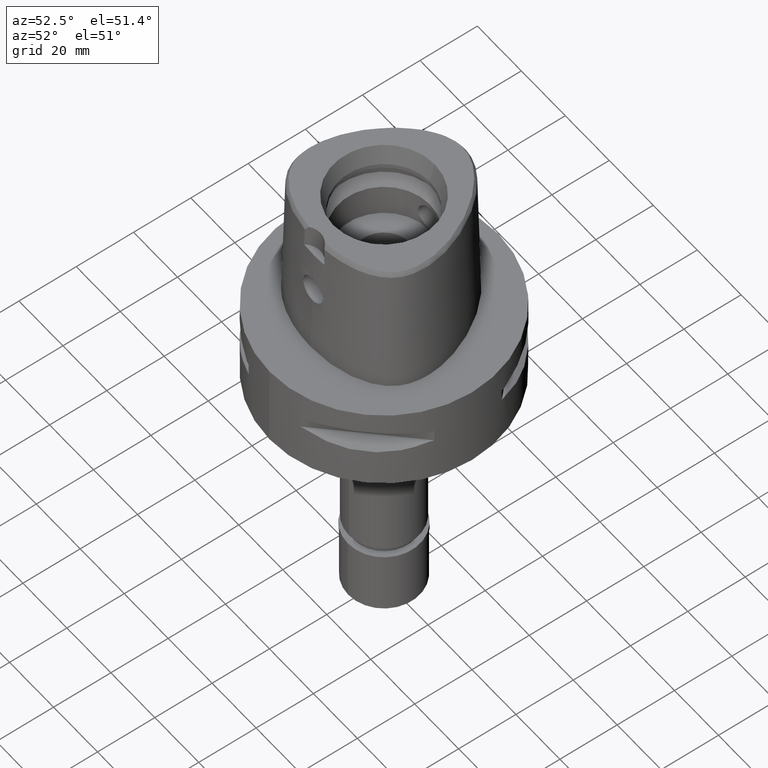
[diagram: clean part render]
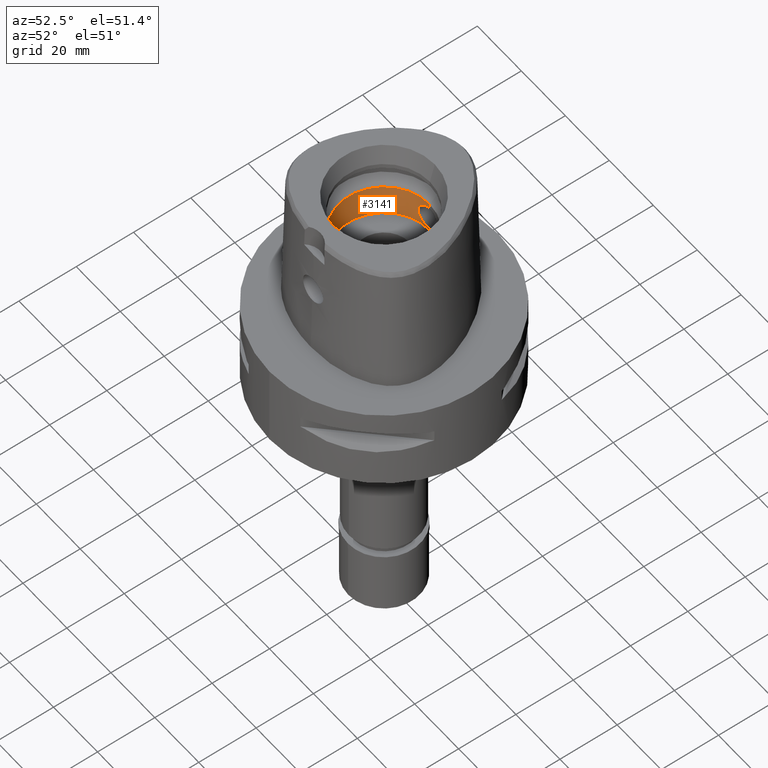
[diagram: same view with one face highlighted and labeled with its STEP entity id]
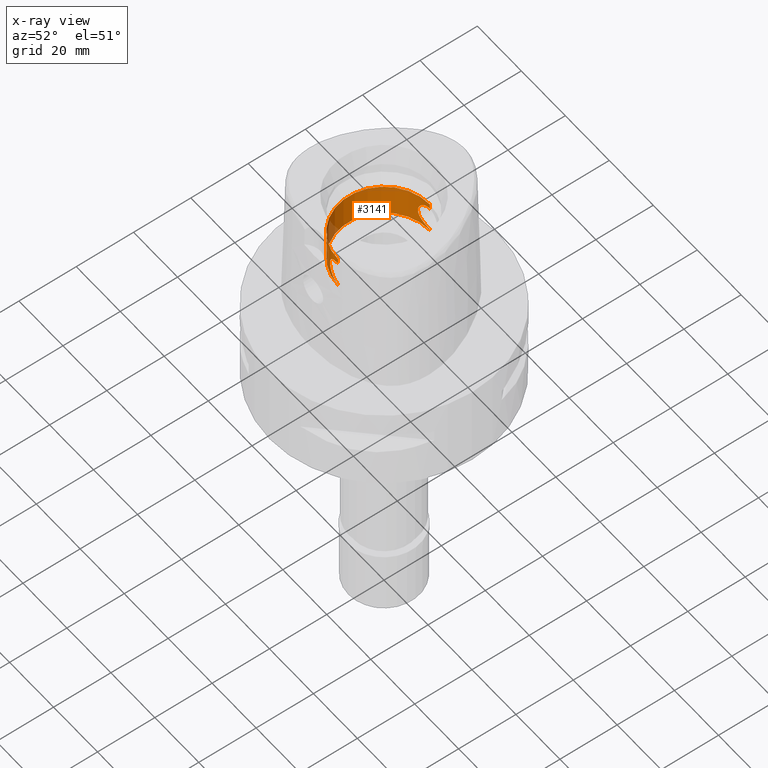
[diagram: x-ray of the same camera — body ghosted, the highlighted face saturated]
A machine part, auxiliary view. The second image highlights one B-rep face of the part: STEP entity #3141.
The next image is the same camera in x-ray: the body ghosted, the highlighted face saturated — about 7% of this face is hidden behind the body in this view.
In plain terms, the highlighted cylindrical surface (partial cylindrical patch) has radius 16 mm, axis along (0, 0, -1).
Its self-contained STEP definition (entity closure, byte-faithful):
#17 = CARTESIAN_POINT ( 'NONE',  ( -3.079067380662787290, 15.70090383901679942, 28.35047343940291142 ) ) ;
#46 = CARTESIAN_POINT ( 'NONE',  ( -3.770759980247857079, -15.54928484612777240, 22.45365534023646958 ) ) ;
#70 = CARTESIAN_POINT ( 'NONE',  ( -3.751176239658187583, 15.55403480366257440, 27.57515572555782768 ) ) ;
#95 = CARTESIAN_POINT ( 'NONE',  ( -3.702050631813982307, -15.56588145238441179, 22.35458630997092655 ) ) ;
#96 = CARTESIAN_POINT ( 'NONE',  ( -3.027770850642460765, 15.71074619974455544, 28.39663927633062457 ) ) ;
#129 = CARTESIAN_POINT ( 'NONE',  ( -4.189656940208129399, 15.44187122868366657, 26.77464054244640579 ) ) ;
#149 = CARTESIAN_POINT ( 'NONE',  ( -3.808565089496177336, 15.54008891750367027, 22.51055076183861559 ) ) ;
#174 = CARTESIAN_POINT ( 'NONE',  ( -3.772324227319705958, -15.54890525390606015, 22.45597329437722678 ) ) ;
#175 = CARTESIAN_POINT ( 'NONE',  ( -2.729594615933962576, 15.76540532702100705, 21.35913730680258382 ) ) ;
#199 = CARTESIAN_POINT ( 'NONE',  ( -4.155129910867763954, -15.45121309824026490, 23.14539743470667332 ) ) ;
#200 = CARTESIAN_POINT ( 'NONE',  ( -4.442109092198020193, 15.37148696654308822, 24.00412671213637594 ) ) ;
#225 = CARTESIAN_POINT ( 'NONE',  ( -4.516446335687758662, -15.34971054047343131, 24.42978865871282323 ) ) ;
#226 = CARTESIAN_POINT ( 'NONE',  ( -3.999411189207473072, 15.49220518450356820, 22.82912099227587177 ) ) ;
#229 = EDGE_CURVE ( 'NONE', #1523, #2794, #3603, .T. ) ;
#251 = CARTESIAN_POINT ( 'NONE',  ( -4.161424560260429395, -15.44954562373212781, 26.84476683909789685 ) ) ;
#252 = CARTESIAN_POINT ( 'NONE',  ( -2.264376687355035944, 15.83946225968417920, 21.05058049220882310 ) ) ;
#268 = AXIS2_PLACEMENT_3D ( 'NONE', #813, #1598, #3164 ) ;
#273 = CIRCLE ( 'NONE', #3314, 16.00000000000000000 ) ;
#284 = CARTESIAN_POINT ( 'NONE',  ( -4.219630551732197254, -15.43366195176635713, 26.70214927482145839 ) ) ;
#287 = LINE ( 'NONE', #1855, #3556 ) ;
#357 = CYLINDRICAL_SURFACE ( 'NONE', #268, 16.00000000000000000 ) ;
#367 = CARTESIAN_POINT ( 'NONE',  ( 0.0000000000000000000, -16.00000000000000000, 29.55000000000000071 ) ) ;
#419 = CARTESIAN_POINT ( 'NONE',  ( -3.772436195961556660, 15.54887830827934181, 27.54386160211427992 ) ) ;
#440 = CARTESIAN_POINT ( 'NONE',  ( -1.465313310938467728, -15.93288054623355521, 20.69122707576773124 ) ) ;
#457 = CARTESIAN_POINT ( 'NONE',  ( 0.0000000000000000000, 16.00000000000000000, 29.55000000000000071 ) ) ;
#465 = CARTESIAN_POINT ( 'NONE',  ( 0.0000000000000000000, -16.00000000000000000, 20.44999999999999929 ) ) ;
#473 = VERTEX_POINT ( 'NONE', #5004 ) ;
#481 = LINE ( 'NONE', #457, #1105 ) ;
#492 = CARTESIAN_POINT ( 'NONE',  ( -1.590909606422051592, 15.92067517995416104, 29.26310650829697835 ) ) ;
#543 = CARTESIAN_POINT ( 'NONE',  ( -1.698281069880156924, -15.90953571157762170, 20.77881952702375656 ) ) ;
#544 = CARTESIAN_POINT ( 'NONE',  ( -1.770123691009649392, 15.90163684328704541, 20.80843252579381897 ) ) ;
#552 = EDGE_CURVE ( 'NONE', #910, #2669, #4163, .T. ) ;
#565 = CARTESIAN_POINT ( 'NONE',  ( -3.484919793550367739, -15.61614698947798807, 27.92670124711028734 ) ) ;
#566 = CARTESIAN_POINT ( 'NONE',  ( -4.161427588471145356, 15.44954525539627710, 23.15523942802261104 ) ) ;
#576 = EDGE_CURVE ( 'NONE', #473, #2669, #3761, .T. ) ;
#584 = ORIENTED_EDGE ( 'NONE', *, *, #229, .F. ) ;
#590 = CARTESIAN_POINT ( 'NONE',  ( -2.554843346241270741, -15.79471292832124796, 28.76501703597668325 ) ) ;
#591 = CARTESIAN_POINT ( 'NONE',  ( -3.873229736101929888, 15.52414134861769313, 22.61183001807234660 ) ) ;
#620 = CARTESIAN_POINT ( 'NONE',  ( -4.226851849638247671, -15.43168791976835230, 26.68413704552114751 ) ) ;
#621 = CARTESIAN_POINT ( 'NONE',  ( -2.064185338870719644, 15.86630648015830936, 20.94446761269487212 ) ) ;
#642 = CARTESIAN_POINT ( 'NONE',  ( -2.652230358253440112, -15.77860401610010932, 28.69718691729551452 ) ) ;
#666 = CARTESIAN_POINT ( 'NONE',  ( -2.546597221807020084, -15.79604512245346903, 28.77059059623901405 ) ) ;
#734 = EDGE_LOOP ( 'NONE', ( #584, #5045, #2922, #1372, #3744, #2704, #2698, #4058 ) ) ;
#774 = DIRECTION ( 'NONE',  ( 0.0000000000000000000, 0.0000000000000000000, 1.000000000000000000 ) ) ;
#813 = CARTESIAN_POINT ( 'NONE',  ( 0.0000000000000000000, 0.0000000000000000000, 50.39999999999999858 ) ) ;
#824 = CARTESIAN_POINT ( 'NONE',  ( -4.199165905794377096, 15.43928770095531178, 26.75202829721409259 ) ) ;
#851 = CARTESIAN_POINT ( 'NONE',  ( -0.9962093680902831538, -15.96920684558384984, 20.55797680759618373 ) ) ;
#852 = CARTESIAN_POINT ( 'NONE',  ( -4.495808787952165098, 15.35589048042781890, 25.71584356322282616 ) ) ;
#878 = CARTESIAN_POINT ( 'NONE',  ( -2.857373536157507665, -15.74233262071704509, 21.45808145753471052 ) ) ;
#879 = CARTESIAN_POINT ( 'NONE',  ( 0.0000000000000000000, 16.00000000000000000, 29.55000000000000071 ) ) ;
#902 = CARTESIAN_POINT ( 'NONE',  ( -4.179513726172752186, 15.44462292696823269, 26.79852470944313581 ) ) ;
#910 = VERTEX_POINT ( 'NONE', #1679 ) ;
#928 = CARTESIAN_POINT ( 'NONE',  ( -3.303417263783335667, 15.65543377176718742, 21.86954111154406633 ) ) ;
#958 = CARTESIAN_POINT ( 'NONE',  ( -4.411053383438083841, -15.38060143693581594, 23.84499821228884997 ) ) ;
#980 = CARTESIAN_POINT ( 'NONE',  ( -1.899645079703601969, -15.88671989459093581, 29.13462918303235227 ) ) ;
#1007 = CARTESIAN_POINT ( 'NONE',  ( -4.442101176630036008, -15.37148904683571082, 25.99590811228755527 ) ) ;
#1008 = CARTESIAN_POINT ( 'NONE',  ( -4.102398033238916497, 15.46541780468326266, 23.02646193778318917 ) ) ;
#1036 = CARTESIAN_POINT ( 'NONE',  ( -4.053977838849259108, -15.47807783950142380, 22.93275730557662229 ) ) ;
#1059 = CARTESIAN_POINT ( 'NONE',  ( -2.574441772251758742, -15.79152790814783458, 28.75167653806473567 ) ) ;
#1104 = B_SPLINE_CURVE_WITH_KNOTS ( 'NONE', 3,
 ( #465, #1727, #3611, #851, #4793, #2858, #440, #1272, #3681, #2834, #543, #4430, #2085, #4769, #4865, #2425, #4409, #878, #2448, #2011, #2477, #2057, #3661, #4841, #1321, #2110, #3298, #1348, #3635, #95, #1682, #2904, #3254, #3587, #46, #174, #3759, #1456, #1399, #1036, #4110, #4998, #199, #2216, #1777, #2548, #3730, #4138, #958, #2956, #225, #1827, #3347, #4917, #4530, #1007, #3781, #2134, #3704, #1751, #2575, #620, #284, #2193, #251, #3015, #4942, #1853, #1802, #3322, #4089, #2527, #3037, #2604, #2241, #3403, #1428, #4971, #565, #4897, #3373, #2984, #1378, #2163, #4557, #642, #4189, #1059, #590, #666, #4167, #4581, #2625, #2932, #4505, #3811, #980, #3433, #1481, #3867, #3123, #5108, #3892, #1119, #367 ),
 .UNSPECIFIED., .F., .F.,
 ( 4, 2, 2, 1, 1, 1, 1, 2, 2, 2, 2, 2, 1, 1, 2, 2, 2, 2, 1, 1, 1, 1, 2, 2, 2, 2, 1, 1, 2, 2, 2, 2, 2, 2, 2, 1, 1, 1, 2, 2, 2, 2, 1, 1, 1, 2, 2, 2, 2, 2, 2, 2, 1, 1, 1, 2, 2, 2, 2, 1, 1, 2, 2, 4 ),
 ( 0.0000000000000000000, 0.06250000000002652045, 0.09375000000003971823, 0.1093750000000462685, 0.1171875000000493910, 0.1210937500000508343, 0.1230468750000515282, 0.1240234375000519723, 0.1250000000000524025, 0.1875000000000700273, 0.2187500000000788813, 0.2343750000000832667, 0.2421875000000854872, 0.2460937500000864309, 0.2480468750000868750, 0.2500000000000873190, 0.2812500000000932032, 0.2968750000000964229, 0.3046875000000984213, 0.3085937500000989764, 0.3105468750000987543, 0.3115234375000985878, 0.3120117187500989764, 0.3125000000000993650, 0.3437500000000869305, 0.3593750000000809908, 0.3671875000000777711, 0.3710937500000761613, 0.3730468750000753286, 0.3750000000000744405, 0.4375000000000624500, 0.4687500000000564548, 0.5000000000000504041, 0.5625000000000393019, 0.5937500000000336398, 0.6093750000000311973, 0.6171875000000296430, 0.6210937500000285327, 0.6230468750000283107, 0.6250000000000281997, 0.6562500000000330846, 0.6718750000000355271, 0.6796875000000370814, 0.6835937500000378586, 0.6855468750000385247, 0.6865234375000388578, 0.6875000000000391909, 0.7187500000000330846, 0.7343750000000300870, 0.7500000000000268674, 0.7812500000000207612, 0.7968750000000177636, 0.8046875000000164313, 0.8085937500000155431, 0.8105468750000148770, 0.8115234375000148770, 0.8125000000000147660, 0.8437500000000153211, 0.8593750000000157652, 0.8671875000000158762, 0.8710937500000158762, 0.8730468750000157652, 0.8750000000000155431, 1.000000000000000000 ),
 .UNSPECIFIED. ) ;
#1105 = VECTOR ( 'NONE', #3267, 1000.000000000000000 ) ;
#1119 = CARTESIAN_POINT ( 'NONE',  ( -0.5625373479073696448, -16.00000000000000000, 29.54999999999999361 ) ) ;
#1204 = CARTESIAN_POINT ( 'NONE',  ( -2.857343863915064119, 15.74233786930796875, 28.54194248883869989 ) ) ;
#1227 = CARTESIAN_POINT ( 'NONE',  ( -4.196352190463255916, 15.44005272207899893, 26.75875030209602201 ) ) ;
#1247 = CARTESIAN_POINT ( 'NONE',  ( -3.468482967250269056, 15.62005502598315942, 27.94868988707264634 ) ) ;
#1264 = DIRECTION ( 'NONE',  ( 0.0000000000000000000, -1.000000000000000000, 0.0000000000000000000 ) ) ;
#1272 = CARTESIAN_POINT ( 'NONE',  ( -1.590945010360116596, -15.92067154165060394, 20.73690668788354685 ) ) ;
#1305 = VERTEX_POINT ( 'NONE', #3275 ) ;
#1321 = CARTESIAN_POINT ( 'NONE',  ( -3.189318713554617268, -15.67891343095203638, 21.75486172333090451 ) ) ;
#1322 = CARTESIAN_POINT ( 'NONE',  ( -3.484925694549966924, 15.61614551242483984, 22.07330582761800031 ) ) ;
#1348 = CARTESIAN_POINT ( 'NONE',  ( -3.608924392932031378, -15.58793867766735275, 22.22802856675687977 ) ) ;
#1349 = CARTESIAN_POINT ( 'NONE',  ( -3.903691630146975733, 15.51651370494703031, 22.66222352453099376 ) ) ;
#1372 = ORIENTED_EDGE ( 'NONE', *, *, #552, .F. ) ;
#1378 = CARTESIAN_POINT ( 'NONE',  ( -2.962123273982140592, -15.72368784968828770, 28.45704749771648423 ) ) ;
#1379 = CARTESIAN_POINT ( 'NONE',  ( 0.0000000000000000000, 16.00000000000000000, 20.00000000000000000 ) ) ;
#1399 = CARTESIAN_POINT ( 'NONE',  ( -3.947477866758910103, -15.50564519408957764, 22.73221844227458632 ) ) ;
#1400 = CARTESIAN_POINT ( 'NONE',  ( -1.754072789399700127, 15.90341470188477402, 20.80169028991615932 ) ) ;
#1428 = CARTESIAN_POINT ( 'NONE',  ( -3.674612787865827901, -15.57277381837817032, 27.68738267111038098 ) ) ;
#1429 = CARTESIAN_POINT ( 'NONE',  ( -2.962140787422690824, 15.72368462031088399, 21.54296756997928597 ) ) ;
#1456 = CARTESIAN_POINT ( 'NONE',  ( -3.866436344057503138, -15.52606591073767106, 22.59570682625311022 ) ) ;
#1481 = CARTESIAN_POINT ( 'NONE',  ( -1.794218988240620982, -15.89894933062925908, 29.18136505999109431 ) ) ;
#1523 = VERTEX_POINT ( 'NONE', #4387 ) ;
#1578 = VECTOR ( 'NONE', #3374, 1000.000000000000000 ) ;
#1598 = DIRECTION ( 'NONE',  ( 0.0000000000000000000, 0.0000000000000000000, -1.000000000000000000 ) ) ;
#1613 = CARTESIAN_POINT ( 'NONE',  ( -1.684846511908498545, 15.91096630911555110, 29.22657713225770948 ) ) ;
#1636 = CARTESIAN_POINT ( 'NONE',  ( -2.655275166708880530, 15.77765331378871672, 28.69879656004965440 ) ) ;
#1659 = CARTESIAN_POINT ( 'NONE',  ( -1.707171946568374787, 15.90858513618628400, 29.21759257412913868 ) ) ;
#1679 = CARTESIAN_POINT ( 'NONE',  ( 0.0000000000000000000, 16.00000000000000000, 29.55000000000000071 ) ) ;
#1682 = CARTESIAN_POINT ( 'NONE',  ( -3.726282369309116049, -15.56005823339070204, 22.38877939537340822 ) ) ;
#1683 = CARTESIAN_POINT ( 'NONE',  ( -0.9961878768771389447, 15.96920825787455023, 29.44202789831593847 ) ) ;
#1710 = CARTESIAN_POINT ( 'NONE',  ( -4.132994643244532362, 15.45714541230709571, 26.90319602464457205 ) ) ;
#1727 = CARTESIAN_POINT ( 'NONE',  ( -0.2782055714221700060, -15.99999999999999645, 20.45000000000000284 ) ) ;
#1728 = CARTESIAN_POINT ( 'NONE',  ( -2.615073108240201893, 15.78484823325644548, 21.27638156580659157 ) ) ;
#1730 = VECTOR ( 'NONE', #774, 1000.000000000000000 ) ;
#1751 = CARTESIAN_POINT ( 'NONE',  ( -4.261970450576532343, -15.42206061786014715, 26.59396347177733233 ) ) ;
#1752 = CARTESIAN_POINT ( 'NONE',  ( -2.554863205078647059, 15.79470972343062130, 21.23499643944213844 ) ) ;
#1777 = CARTESIAN_POINT ( 'NONE',  ( -4.189652323891028374, -15.44187290045170791, 23.22534855781601593 ) ) ;
#1779 = CARTESIAN_POINT ( 'NONE',  ( -3.799104005360694369, 15.54240417563912935, 22.49613942991346605 ) ) ;
#1802 = CARTESIAN_POINT ( 'NONE',  ( -3.903695300097065335, -15.51651288046159038, 27.33777033989573013 ) ) ;
#1803 = CARTESIAN_POINT ( 'NONE',  ( -4.219636267341808633, 15.43366082681107621, 23.29786489254982129 ) ) ;
#1827 = CARTESIAN_POINT ( 'NONE',  ( -4.543547069557843265, -15.34147168805904116, 24.71785021071737631 ) ) ;
#1828 = CARTESIAN_POINT ( 'NONE',  ( -4.524616866566812945, 15.34742484315163402, 24.43721284604779242 ) ) ;
#1853 = CARTESIAN_POINT ( 'NONE',  ( -3.962678364186410729, -15.50163000503252952, 27.23734414303949691 ) ) ;
#1855 = CARTESIAN_POINT ( 'NONE',  ( 0.0000000000000000000, -16.00000000000000000, 29.55000000000000071 ) ) ;
#1869 = EDGE_CURVE ( 'NONE', #3687, #1305, #287, .T. ) ;
#1987 = CARTESIAN_POINT ( 'NONE',  ( -3.866446053865151278, 15.52606363698486547, 27.40427778759385902 ) ) ;
#2011 = CARTESIAN_POINT ( 'NONE',  ( -3.027798496762783564, -15.71074096793951114, 21.60338537067459086 ) ) ;
#2012 = CARTESIAN_POINT ( 'NONE',  ( -2.143366757437013881, 15.85669290493108008, 29.02458111161339716 ) ) ;
#2036 = CARTESIAN_POINT ( 'NONE',  ( -1.140760103993205377, 15.95958583846035239, 29.40724264926300435 ) ) ;
#2048 = CARTESIAN_POINT ( 'NONE',  ( 0.0000000000000000000, -16.00000000000000000, 29.55000000000000071 ) ) ;
#2057 = CARTESIAN_POINT ( 'NONE',  ( -3.138953278066980879, -15.68906115651885003, 21.70599708910913606 ) ) ;
#2059 = CARTESIAN_POINT ( 'NONE',  ( -3.947487563896062923, 15.50564270218542084, 27.26776463166709163 ) ) ;
#2085 = CARTESIAN_POINT ( 'NONE',  ( -1.713071927413301054, -15.90795088191267581, 20.78480184165006150 ) ) ;
#2086 = CARTESIAN_POINT ( 'NONE',  ( -3.608925282302509974, 15.58793875489599934, 27.77197038996003542 ) ) ;
#2110 = CARTESIAN_POINT ( 'NONE',  ( -3.349840948361816562, -15.64616776985414148, 21.91354633895037551 ) ) ;
#2111 = CARTESIAN_POINT ( 'NONE',  ( -3.674613688661279021, 15.57277332895812272, 22.31261877386840808 ) ) ;
#2125 = CARTESIAN_POINT ( 'NONE',  ( 0.0000000000000000000, 0.0000000000000000000, 20.00000000000000000 ) ) ;
#2134 = CARTESIAN_POINT ( 'NONE',  ( -4.343074729120707467, -15.39956319108151916, 26.35864634396184059 ) ) ;
#2135 = CARTESIAN_POINT ( 'NONE',  ( -3.536513010712533323, 15.60452899826052331, 22.13623471127148434 ) ) ;
#2163 = CARTESIAN_POINT ( 'NONE',  ( -2.785130416877287907, -15.75567861087420773, 28.59878611255497916 ) ) ;
#2164 = CARTESIAN_POINT ( 'NONE',  ( -2.541153697273674350, 15.79692280174022834, 21.22573864951214162 ) ) ;
#2193 = CARTESIAN_POINT ( 'NONE',  ( -4.215493976535723775, -15.43479160256108607, 26.71236132617347536 ) ) ;
#2194 = CARTESIAN_POINT ( 'NONE',  ( -1.747105877979794109, 15.90418178585306030, 20.79878388586040572 ) ) ;
#2216 = CARTESIAN_POINT ( 'NONE',  ( -4.179508729497911190, -15.44462469562572338, 23.20146367009745703 ) ) ;
#2217 = CARTESIAN_POINT ( 'NONE',  ( -2.399895137346605090, 15.81960703099427867, 21.13092108888233511 ) ) ;
#2241 = CARTESIAN_POINT ( 'NONE',  ( -3.799108428661934322, -15.54240332098869537, 27.50385385879609501 ) ) ;
#2367 = CARTESIAN_POINT ( 'NONE',  ( 0.0000000000000000000, 16.00000000000000000, 31.50000000000000000 ) ) ;
#2374 = CARTESIAN_POINT ( 'NONE',  ( -2.925363802413545766, 15.73002552135701748, 28.48611035590906582 ) ) ;
#2397 = CARTESIAN_POINT ( 'NONE',  ( -4.323958105636553029, 15.40531264654294041, 26.45109749241865771 ) ) ;
#2415 = CARTESIAN_POINT ( 'NONE',  ( 0.0000000000000000000, 16.00000000000000000, 20.44999999999999929 ) ) ;
#2425 = CARTESIAN_POINT ( 'NONE',  ( -2.523300014680701420, -15.79902962756622742, 21.21085096063524844 ) ) ;
#2426 = CARTESIAN_POINT ( 'NONE',  ( -4.516441512071670772, 15.34971197744748928, 25.57024841028623641 ) ) ;
#2440 = DIRECTION ( 'NONE',  ( 0.0000000000000000000, 0.0000000000000000000, -1.000000000000000000 ) ) ;
#2448 = CARTESIAN_POINT ( 'NONE',  ( -2.925392688737479041, -15.73002027454133156, 21.51391389589028691 ) ) ;
#2449 = CARTESIAN_POINT ( 'NONE',  ( -3.189292576270065016, 15.67891872885192761, 28.24516396761776704 ) ) ;
#2477 = CARTESIAN_POINT ( 'NONE',  ( -3.079094391384670448, -15.70089861780404128, 21.64955138946805846 ) ) ;
#2503 = CARTESIAN_POINT ( 'NONE',  ( -2.652250871545867472, 15.77860059733965059, 21.30282779764083756 ) ) ;
#2527 = CARTESIAN_POINT ( 'NONE',  ( -3.816848088710129705, -15.53805899386197353, 27.47676173747089834 ) ) ;
#2528 = CARTESIAN_POINT ( 'NONE',  ( -4.308081053701197760, 15.40933751179871791, 23.53260340130821859 ) ) ;
#2548 = CARTESIAN_POINT ( 'NONE',  ( -4.196347830802966250, -15.44005432721269244, 23.24123929448986914 ) ) ;
#2549 = CARTESIAN_POINT ( 'NONE',  ( -3.803024487767081130, 15.54144551466437463, 22.50209481850186322 ) ) ;
#2575 = CARTESIAN_POINT ( 'NONE',  ( -4.237588040299701042, -15.42875037416635386, 26.65710732719835718 ) ) ;
#2576 = CARTESIAN_POINT ( 'NONE',  ( -2.574461866630644913, 15.79152464315161986, 21.24833724970529403 ) ) ;
#2604 = CARTESIAN_POINT ( 'NONE',  ( -3.803028819094930402, -15.54144467798811924, 27.49789858710717994 ) ) ;
#2605 = CARTESIAN_POINT ( 'NONE',  ( -4.261977057047800166, 15.42205922307470267, 23.40605414359049163 ) ) ;
#2625 = CARTESIAN_POINT ( 'NONE',  ( -2.399876071687986112, -15.81960993100436497, 28.86909068673987377 ) ) ;
#2669 = VERTEX_POINT ( 'NONE', #2415 ) ;
#2698 = ORIENTED_EDGE ( 'NONE', *, *, #1869, .F. ) ;
#2704 = ORIENTED_EDGE ( 'NONE', *, *, #4098, .T. ) ;
#2764 = CARTESIAN_POINT ( 'NONE',  ( -3.164567237336389116, 15.68391714219621136, 28.26927458741651122 ) ) ;
#2794 = VERTEX_POINT ( 'NONE', #2798 ) ;
#2798 = CARTESIAN_POINT ( 'NONE',  ( 0.0000000000000000000, -16.00000000000000000, 20.44999999999999929 ) ) ;
#2808 = CARTESIAN_POINT ( 'NONE',  ( -3.649469553235155317, 15.57840963761018216, 27.71798495591515987 ) ) ;
#2834 = CARTESIAN_POINT ( 'NONE',  ( -1.684884112685484991, -15.91096222550596195, 20.77343785575581236 ) ) ;
#2835 = CARTESIAN_POINT ( 'NONE',  ( -1.713033589464119988, 15.90795511220731129, 29.21521373882661621 ) ) ;
#2858 = CARTESIAN_POINT ( 'NONE',  ( -1.357211456932369664, -15.94226283546972667, 20.65648383293340729 ) ) ;
#2880 = CARTESIAN_POINT ( 'NONE',  ( -4.550014972005905989, 15.33941184350851117, 25.13790463108722761 ) ) ;
#2904 = CARTESIAN_POINT ( 'NONE',  ( -3.751168735432475643, -15.55403637236168635, 22.42483334723816313 ) ) ;
#2906 = CARTESIAN_POINT ( 'NONE',  ( -2.785150339257688401, 15.75567514882851583, 21.40122932039081149 ) ) ;
#2922 = ORIENTED_EDGE ( 'NONE', *, *, #576, .T. ) ;
#2932 = CARTESIAN_POINT ( 'NONE',  ( -2.264357884705888058, -15.83946496220292666, 28.94943027728263374 ) ) ;
#2933 = CARTESIAN_POINT ( 'NONE',  ( -2.539987065377296904, 15.79711102339729756, 21.22495141109085637 ) ) ;
#2956 = CARTESIAN_POINT ( 'NONE',  ( -4.495814062762359065, -15.35588899405685659, 24.28418844424154699 ) ) ;
#2957 = CARTESIAN_POINT ( 'NONE',  ( -4.543544055679970661, 15.34147267175649709, 25.28219602317085091 ) ) ;
#2984 = CARTESIAN_POINT ( 'NONE',  ( -3.094062483597774804, -15.69862711313532344, 28.34195050025302010 ) ) ;
#2985 = CARTESIAN_POINT ( 'NONE',  ( -3.816843789853405333, 15.53805983925459522, 22.52323163771983516 ) ) ;
#3015 = CARTESIAN_POINT ( 'NONE',  ( -4.102397402675392435, -15.46541766008241758, 26.97353909032441521 ) ) ;
#3037 = CARTESIAN_POINT ( 'NONE',  ( -3.808569409117196436, -15.54008807711253581, 27.48944262964128882 ) ) ;
#3076 = CARTESIAN_POINT ( 'NONE',  ( 0.0000000000000000000, 0.0000000000000000000, 31.50000000000000000 ) ) ;
#3123 = CARTESIAN_POINT ( 'NONE',  ( -1.754052669290921518, -15.90341690957294851, 29.19831811637298102 ) ) ;
#3128 = DIRECTION ( 'NONE',  ( 0.0000000000000000000, 0.0000000000000000000, 1.000000000000000000 ) ) ;
#3141 = ADVANCED_FACE ( 'NONE', ( #5079 ), #357, .F. ) ;
#3164 = DIRECTION ( 'NONE',  ( 0.0000000000000000000, -1.000000000000000000, 0.0000000000000000000 ) ) ;
#3183 = CARTESIAN_POINT ( 'NONE',  ( -3.181655711113680063, 15.68046743868570303, 28.25264647072010504 ) ) ;
#3204 = CARTESIAN_POINT ( 'NONE',  ( -3.138927033459067761, 15.68906635997180032, 28.29402792154699853 ) ) ;
#3228 = CARTESIAN_POINT ( 'NONE',  ( -3.768407434987185223, 15.54985593897530549, 27.54982731639834270 ) ) ;
#3254 = CARTESIAN_POINT ( 'NONE',  ( -3.762790664247959604, -15.55121841546309902, 22.44188264558991364 ) ) ;
#3267 = DIRECTION ( 'NONE',  ( 0.0000000000000000000, 0.0000000000000000000, 1.000000000000000000 ) ) ;
#3275 = CARTESIAN_POINT ( 'NONE',  ( 0.0000000000000000000, -16.00000000000000000, 31.50000000000000000 ) ) ;
#3278 = CARTESIAN_POINT ( 'NONE',  ( -2.523266824950815224, 15.79903481094641471, 28.78917115941111149 ) ) ;
#3298 = CARTESIAN_POINT ( 'NONE',  ( -3.468490070397645564, -15.62005320465524960, 22.05131889923377742 ) ) ;
#3299 = CARTESIAN_POINT ( 'NONE',  ( -1.159189432197057501, 15.96838986749791722, 20.55577659394891654 ) ) ;
#3314 = AXIS2_PLACEMENT_3D ( 'NONE', #2125, #2440, #1264 ) ;
#3322 = CARTESIAN_POINT ( 'NONE',  ( -3.873233737741787586, -15.52414049618650971, 27.38816348668874667 ) ) ;
#3323 = CARTESIAN_POINT ( 'NONE',  ( -1.850773136603759417, 15.89251031774791656, 20.84315916015391323 ) ) ;
#3347 = CARTESIAN_POINT ( 'NONE',  ( -4.550016605372627865, -15.33941127123988224, 24.86215099079625546 ) ) ;
#3348 = CARTESIAN_POINT ( 'NONE',  ( -4.226857725782997122, 15.43168674739930601, 23.31587770079802624 ) ) ;
#3373 = CARTESIAN_POINT ( 'NONE',  ( -3.303408539620267259, -15.65543566466233472, 28.13046817105701791 ) ) ;
#3374 = DIRECTION ( 'NONE',  ( 0.0000000000000000000, 0.0000000000000000000, 1.000000000000000000 ) ) ;
#3403 = CARTESIAN_POINT ( 'NONE',  ( -3.744577712557837668, -15.55572792693724971, 27.58647495007265604 ) ) ;
#3433 = CARTESIAN_POINT ( 'NONE',  ( -1.850753553191023970, -15.89251259052358556, 29.15684956055770982 ) ) ;
#3556 = VECTOR ( 'NONE', #5000, 1000.000000000000000 ) ;
#3561 = CARTESIAN_POINT ( 'NONE',  ( -1.912171411920562836, 15.88648310426963839, 29.13411677183932724 ) ) ;
#3579 = CARTESIAN_POINT ( 'NONE',  ( 0.0000000000000000000, -16.00000000000000000, 20.00000000000000000 ) ) ;
#3587 = CARTESIAN_POINT ( 'NONE',  ( -3.768399313982387255, -15.54985768041777128, 22.45016068176643742 ) ) ;
#3603 = LINE ( 'NONE', #3579, #1730 ) ;
#3604 = EDGE_CURVE ( 'NONE', #1523, #473, #273, .T. ) ;
#3611 = CARTESIAN_POINT ( 'NONE',  ( -0.5640752440413994151, -15.99230171139595313, 20.47558493208720876 ) ) ;
#3612 = CARTESIAN_POINT ( 'NONE',  ( -1.465280853777187309, 15.93288362458592644, 29.30878390010149204 ) ) ;
#3614 = EDGE_CURVE ( 'NONE', #910, #4525, #481, .T. ) ;
#3635 = CARTESIAN_POINT ( 'NONE',  ( -3.649466559997799564, -15.57841005547312641, 22.28201108996227120 ) ) ;
#3636 = CARTESIAN_POINT ( 'NONE',  ( -4.086977595750750147, 15.46939700107862414, 27.00107807170905971 ) ) ;
#3661 = CARTESIAN_POINT ( 'NONE',  ( -3.164593148527450772, -15.68391194751223772, 21.73075049433117556 ) ) ;
#3662 = CARTESIAN_POINT ( 'NONE',  ( -3.762798590163527468, 15.55121672924266996, 27.55810569687010059 ) ) ;
#3681 = CARTESIAN_POINT ( 'NONE',  ( -1.653600938238583895, -15.91425128924059784, 20.76104373297139105 ) ) ;
#3682 = CARTESIAN_POINT ( 'NONE',  ( -4.549969975828982882, 15.33940606239298887, 24.72271143177623642 ) ) ;
#3687 = VERTEX_POINT ( 'NONE', #2048 ) ;
#3704 = CARTESIAN_POINT ( 'NONE',  ( -4.308073645031747390, -15.40933917230817407, 26.46741814497415390 ) ) ;
#3705 = CARTESIAN_POINT ( 'NONE',  ( -3.369139138973671344, 15.64144112288047594, 21.94072764575870593 ) ) ;
#3730 = CARTESIAN_POINT ( 'NONE',  ( -4.199161613558267447, -15.43928928869321204, 23.24796141288932461 ) ) ;
#3744 = ORIENTED_EDGE ( 'NONE', *, *, #3614, .T. ) ;
#3759 = CARTESIAN_POINT ( 'NONE',  ( -3.772427912172982012, -15.54888009509339675, 22.45612611348318666 ) ) ;
#3761 = LINE ( 'NONE', #1379, #1578 ) ;
#3781 = CARTESIAN_POINT ( 'NONE',  ( -4.407197250798306598, -15.38151538190922807, 26.14104529064670857 ) ) ;
#3782 = CARTESIAN_POINT ( 'NONE',  ( -0.5625435954014351703, 16.00000000000000000, 20.44999999999999929 ) ) ;
#3811 = CARTESIAN_POINT ( 'NONE',  ( -1.997944188101353769, -15.87476718255523700, 29.08851545934848559 ) ) ;
#3867 = CARTESIAN_POINT ( 'NONE',  ( -1.770103668336874270, -15.90163906099973090, 29.19157592991615147 ) ) ;
#3892 = CARTESIAN_POINT ( 'NONE',  ( -1.159175767070490970, -15.96839060021183343, 29.44422579484439950 ) ) ;
#3949 = CARTESIAN_POINT ( 'NONE',  ( -3.770768181524768892, 15.54928308177700380, 27.54633251487235057 ) ) ;
#3970 = CARTESIAN_POINT ( 'NONE',  ( -0.2782001068910611719, 16.00000000000001066, 29.55000000000000426 ) ) ;
#3999 = CARTESIAN_POINT ( 'NONE',  ( -1.698243156451421987, 15.90953986061253644, 29.22119572610240468 ) ) ;
#4024 = CARTESIAN_POINT ( 'NONE',  ( -3.702056098178802213, 15.56588042129633820, 27.64540605693719755 ) ) ;
#4047 = CARTESIAN_POINT ( 'NONE',  ( -4.053986218455703394, 15.47807541231430939, 27.06722624874729632 ) ) ;
#4058 = ORIENTED_EDGE ( 'NONE', *, *, #4452, .F. ) ;
#4070 = CARTESIAN_POINT ( 'NONE',  ( -1.899664462564046419, 15.88671758217960139, 20.86537972280028441 ) ) ;
#4089 = CARTESIAN_POINT ( 'NONE',  ( -3.835940430625005781, -15.53336519271712390, 27.44719556074509725 ) ) ;
#4090 = CARTESIAN_POINT ( 'NONE',  ( -4.237594150193246811, 15.42874913209464438, 23.34290828511583982 ) ) ;
#4098 = EDGE_CURVE ( 'NONE', #4525, #1305, #4553, .T. ) ;
#4110 = CARTESIAN_POINT ( 'NONE',  ( -4.086969872069973420, -15.46939934136937467, 22.99890610495348753 ) ) ;
#4111 = CARTESIAN_POINT ( 'NONE',  ( -3.962675516144175791, 15.50163073709197370, 22.76265078186375135 ) ) ;
#4138 = CARTESIAN_POINT ( 'NONE',  ( -4.323960206990523858, -15.40531250836003707, 23.54890563554800309 ) ) ;
#4139 = CARTESIAN_POINT ( 'NONE',  ( -3.835936202304143450, 15.53336604578387714, 22.55279781099049075 ) ) ;
#4141 = AXIS2_PLACEMENT_3D ( 'NONE', #3076, #3128, #4330 ) ;
#4163 = B_SPLINE_CURVE_WITH_KNOTS ( 'NONE', 3,
 ( #879, #3970, #4410, #1683, #2036, #4354, #3612, #492, #4431, #1613, #3999, #1659, #2835, #3561, #2012, #3278, #1636, #1204, #2374, #96, #17, #3204, #2764, #3183, #2449, #4770, #1247, #2086, #2808, #4024, #4819, #70, #3662, #3228, #3949, #4331, #419, #1987, #2059, #4047, #3636, #1710, #4750, #902, #129, #1227, #824, #2397, #4384, #852, #2426, #2957, #2880, #3682, #1828, #200, #4457, #4842, #2528, #2605, #4090, #3348, #1803, #4531, #566, #1008, #226, #4111, #1349, #591, #4139, #2985, #149, #2549, #1779, #4918, #2111, #2135, #1322, #3705, #928, #4866, #1429, #2906, #175, #2503, #1728, #2576, #1752, #4558, #2164, #2933, #2217, #252, #621, #4943, #4070, #3323, #4899, #544, #1400, #2194, #3299, #3782, #4485 ),
 .UNSPECIFIED., .F., .F.,
 ( 4, 2, 2, 1, 1, 1, 1, 2, 2, 2, 2, 2, 1, 1, 2, 2, 2, 2, 1, 1, 1, 1, 2, 2, 2, 2, 1, 1, 2, 2, 2, 2, 2, 2, 2, 1, 1, 1, 2, 2, 2, 2, 1, 1, 1, 2, 2, 2, 2, 2, 2, 2, 1, 1, 1, 2, 2, 2, 2, 1, 1, 2, 2, 4 ),
 ( 0.0000000000000000000, 0.06249999999996705413, 0.09374999999995060895, 0.1093749999999422962, 0.1171874999999382438, 0.1210937499999362593, 0.1230468749999353989, 0.1240234374999348438, 0.1249999999999342748, 0.1874999999998833988, 0.2187499999998581690, 0.2343749999998457345, 0.2421874999998394618, 0.2460937499998365752, 0.2480468749998349098, 0.2499999999998332445, 0.2812499999998110956, 0.2968749999997997713, 0.3046874999997941091, 0.3085937499997913336, 0.3105468749997898903, 0.3115234374997891686, 0.3120117187497892242, 0.3124999999997893352, 0.3437499999997984945, 0.3593749999998027689, 0.3671874999998046007, 0.3710937499998054889, 0.3730468749998062661, 0.3749999999998069877, 0.4374999999998204214, 0.4687499999998268607, 0.4999999999998332445, 0.5624999999998460121, 0.5937499999998527844, 0.6093749999998557820, 0.6171874999998573363, 0.6210937499998576694, 0.6230468749998582245, 0.6249999999998586686, 0.6562499999998689937, 0.6718749999998741007, 0.6796874999998766542, 0.6835937499998778755, 0.6855468749998785416, 0.6865234374998790967, 0.6874999999998797628, 0.7187499999998928635, 0.7343749999998995248, 0.7499999999999060751, 0.7812499999999187317, 0.7968749999999250599, 0.8046874999999279465, 0.8085937499999295008, 0.8105468749999302780, 0.8115234374999307221, 0.8124999999999311662, 0.8437499999999450440, 0.8593749999999519273, 0.8671874999999553690, 0.8710937499999568123, 0.8730468749999575895, 0.8749999999999582556, 1.000000000000000000 ),
 .UNSPECIFIED. ) ;
#4167 = CARTESIAN_POINT ( 'NONE',  ( -2.541134032800150155, -15.79692595976082536, 28.77427459015718370 ) ) ;
#4189 = CARTESIAN_POINT ( 'NONE',  ( -2.615052671133250239, -15.78485159900799140, 28.72363278278391974 ) ) ;
#4330 = DIRECTION ( 'NONE',  ( 0.0000000000000000000, 1.000000000000000000, 0.0000000000000000000 ) ) ;
#4331 = CARTESIAN_POINT ( 'NONE',  ( -3.772332481373883883, 15.54890347445157950, 27.54401446636360262 ) ) ;
#4354 = CARTESIAN_POINT ( 'NONE',  ( -1.357181538775629193, 15.94226548351479167, 29.34352548247307269 ) ) ;
#4384 = CARTESIAN_POINT ( 'NONE',  ( -4.411048559110542833, 15.38060253977330483, 26.15501743212412578 ) ) ;
#4387 = CARTESIAN_POINT ( 'NONE',  ( 0.0000000000000000000, -16.00000000000000000, 20.00000000000000000 ) ) ;
#4409 = CARTESIAN_POINT ( 'NONE',  ( -2.655307059733455155, -15.77764808456774048, 21.30122637014640219 ) ) ;
#4410 = CARTESIAN_POINT ( 'NONE',  ( -0.5640635805869049779, 15.99230206446863889, 29.52441607490641928 ) ) ;
#4430 = CARTESIAN_POINT ( 'NONE',  ( -1.707210068307569939, -15.90858094336208062, 20.78242285661323052 ) ) ;
#4431 = CARTESIAN_POINT ( 'NONE',  ( -1.653564068228525974, 15.91425522200126252, 29.23897064560675929 ) ) ;
#4452 = EDGE_CURVE ( 'NONE', #2794, #3687, #1104, .T. ) ;
#4457 = CARTESIAN_POINT ( 'NONE',  ( -4.407205412713338433, 15.38151333304915624, 23.85898569809447167 ) ) ;
#4485 = CARTESIAN_POINT ( 'NONE',  ( 0.0000000000000000000, 16.00000000000000000, 20.44999999999999929 ) ) ;
#4505 = CARTESIAN_POINT ( 'NONE',  ( -2.064166413347512830, -15.86630894763755428, 29.05554201732576303 ) ) ;
#4525 = VERTEX_POINT ( 'NONE', #2367 ) ;
#4530 = CARTESIAN_POINT ( 'NONE',  ( -4.524610823692029271, -15.34742665473920020, 25.56283231986219207 ) ) ;
#4531 = CARTESIAN_POINT ( 'NONE',  ( -4.215499682017137317, 15.43479048220081751, 23.28765271728413566 ) ) ;
#4553 = CIRCLE ( 'NONE', #4141, 16.00000000000000000 ) ;
#4557 = CARTESIAN_POINT ( 'NONE',  ( -2.729574231541165297, -15.76540880732892091, 28.64087797284603099 ) ) ;
#4558 = CARTESIAN_POINT ( 'NONE',  ( -2.546616965873742089, 15.79604194540690898, 21.22942273861440654 ) ) ;
#4581 = CARTESIAN_POINT ( 'NONE',  ( -2.539967469038481696, -15.79711416914364186, 28.77506177389923181 ) ) ;
#4750 = CARTESIAN_POINT ( 'NONE',  ( -4.155135760224653474, 15.45121112494183535, 26.85458942879168021 ) ) ;
#4769 = CARTESIAN_POINT ( 'NONE',  ( -1.912209224132250585, -15.88647844644094498, 20.86590070628309590 ) ) ;
#4770 = CARTESIAN_POINT ( 'NONE',  ( -3.349826277480681291, 15.64617109901425174, 28.08647051457720067 ) ) ;
#4793 = CARTESIAN_POINT ( 'NONE',  ( -1.140784955987854010, -15.95958398482881080, 20.59276365351468741 ) ) ;
#4819 = CARTESIAN_POINT ( 'NONE',  ( -3.726288901112015939, 15.56005692804316354, 27.61121130299216375 ) ) ;
#4841 = CARTESIAN_POINT ( 'NONE',  ( -3.181681398924358639, -15.68046225010494688, 21.74737865687358607 ) ) ;
#4842 = CARTESIAN_POINT ( 'NONE',  ( -4.343082513322389815, 15.39956137087163768, 23.64137842677810042 ) ) ;
#4865 = CARTESIAN_POINT ( 'NONE',  ( -2.143403220011760091, -15.85668795785578844, 20.97543837631116048 ) ) ;
#4866 = CARTESIAN_POINT ( 'NONE',  ( -3.094077004170888046, 15.69862427604555144, 21.65806322977843479 ) ) ;
#4897 = CARTESIAN_POINT ( 'NONE',  ( -3.369130814278060271, -15.64144300377932950, 28.05928156821142849 ) ) ;
#4899 = CARTESIAN_POINT ( 'NONE',  ( -1.794238869419840565, 15.89894709740169176, 20.81864347152965777 ) ) ;
#4917 = CARTESIAN_POINT ( 'NONE',  ( -4.549966690610683706, -15.33940721084024084, 25.27733904945685239 ) ) ;
#4918 = CARTESIAN_POINT ( 'NONE',  ( -3.744576044325127473, 15.55572804701056455, 22.41352282408128360 ) ) ;
#4942 = CARTESIAN_POINT ( 'NONE',  ( -3.999413278141981110, -15.49220456277421043, 27.17087509503673459 ) ) ;
#4943 = CARTESIAN_POINT ( 'NONE',  ( -1.997963240203906921, 15.87476478322290241, 20.91149385244035841 ) ) ;
#4971 = CARTESIAN_POINT ( 'NONE',  ( -3.536508346788940216, -15.60453024768486863, 27.86377109831162713 ) ) ;
#4998 = CARTESIAN_POINT ( 'NONE',  ( -4.132988131113338071, -15.45714752426730243, 23.09678982083525156 ) ) ;
#5000 = DIRECTION ( 'NONE',  ( 0.0000000000000000000, 0.0000000000000000000, 1.000000000000000000 ) ) ;
#5004 = CARTESIAN_POINT ( 'NONE',  ( 0.0000000000000000000, 16.00000000000000000, 20.00000000000000000 ) ) ;
#5045 = ORIENTED_EDGE ( 'NONE', *, *, #3604, .T. ) ;
#5079 = FACE_OUTER_BOUND ( 'NONE', #734, .T. ) ;
#5108 = CARTESIAN_POINT ( 'NONE',  ( -1.747085553308910910, -15.90418400689213740, 29.20122456593863447 ) ) ;